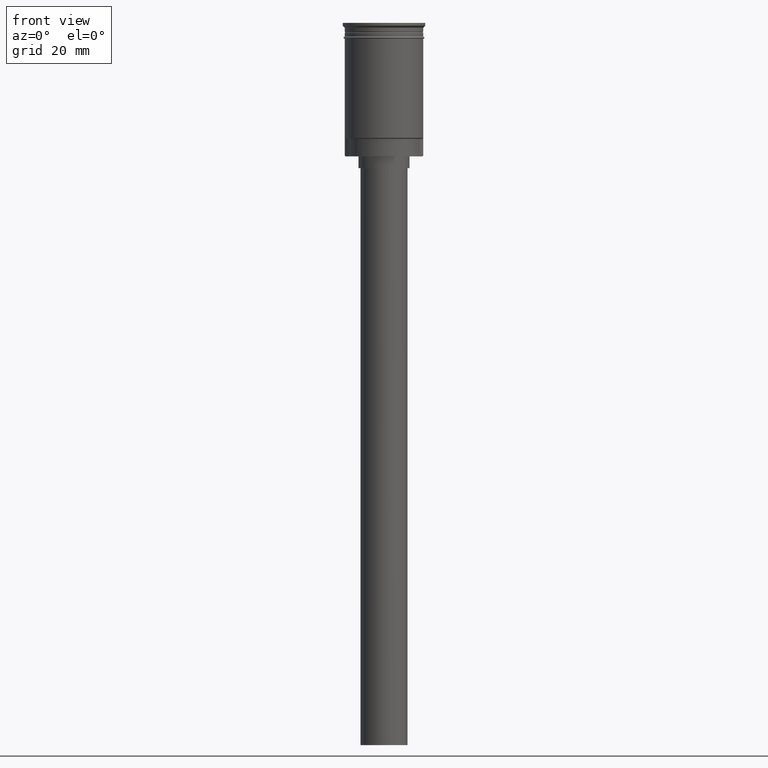
[diagram: clean part render]
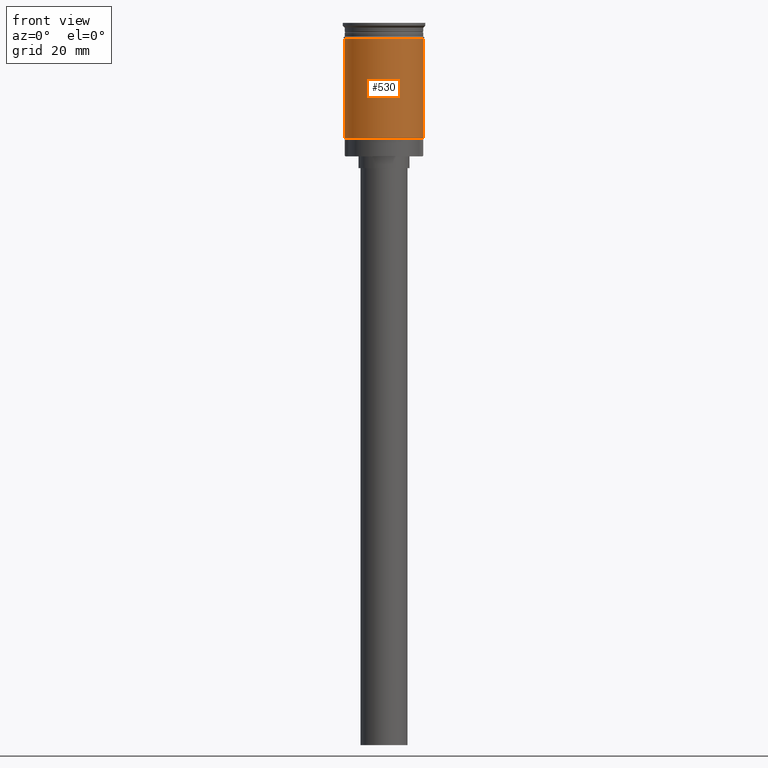
[diagram: same view with one face highlighted and labeled with its STEP entity id]
A machine part, front view. The second image highlights one B-rep face of the part: STEP entity #530.
In plain terms, the highlighted cylindrical surface (partial cylindrical patch) has radius 10 mm, axis along (-0, -0, 1).
Its self-contained STEP definition (entity closure, byte-faithful):
#7 = DIRECTION ( 'NONE',  ( -0.000000000000000000, -0.000000000000000000, 1.000000000000000000 ) ) ;
#12 = VECTOR ( 'NONE', #403, 1000.000000000000000 ) ;
#37 = EDGE_CURVE ( 'NONE', #219, #409, #1247, .T. ) ;
#149 = CARTESIAN_POINT ( 'NONE',  ( -9.999999999999991118, 0.000000000000000000, -29.29999999999997229 ) ) ;
#180 = DIRECTION ( 'NONE',  ( 1.000000000000000000, 0.000000000000000000, 0.000000000000000000 ) ) ;
#190 = VERTEX_POINT ( 'NONE', #149 ) ;
#213 = DIRECTION ( 'NONE',  ( -0.000000000000000000, -0.000000000000000000, 1.000000000000000000 ) ) ;
#219 = VERTEX_POINT ( 'NONE', #741 ) ;
#274 = DIRECTION ( 'NONE',  ( -0.000000000000000000, -0.000000000000000000, 1.000000000000000000 ) ) ;
#333 = AXIS2_PLACEMENT_3D ( 'NONE', #1256, #7, #1362 ) ;
#403 = DIRECTION ( 'NONE',  ( -0.000000000000000000, -0.000000000000000000, 1.000000000000000000 ) ) ;
#409 = VERTEX_POINT ( 'NONE', #1202 ) ;
#440 = AXIS2_PLACEMENT_3D ( 'NONE', #1569, #213, #1351 ) ;
#443 = CIRCLE ( 'NONE', #333, 9.999999999999994671 ) ;
#465 = ORIENTED_EDGE ( 'NONE', *, *, #656, .F. ) ;
#530 = ADVANCED_FACE ( 'NONE', ( #710 ), #1093, .T. ) ;
#576 = CARTESIAN_POINT ( 'NONE',  ( -10.00000000000000000, 1.224646799147353256E-15, -3.999999999999996447 ) ) ;
#580 = LINE ( 'NONE', #1583, #1139 ) ;
#656 = EDGE_CURVE ( 'NONE', #978, #409, #1539, .T. ) ;
#710 = FACE_OUTER_BOUND ( 'NONE', #1084, .T. ) ;
#741 = CARTESIAN_POINT ( 'NONE',  ( 9.999999999999994671, 1.224646799147352665E-15, -29.29999999999997229 ) ) ;
#801 = AXIS2_PLACEMENT_3D ( 'NONE', #1537, #274, #180 ) ;
#824 = ORIENTED_EDGE ( 'NONE', *, *, #1584, .F. ) ;
#833 = DIRECTION ( 'NONE',  ( -0.000000000000000000, -0.000000000000000000, 1.000000000000000000 ) ) ;
#923 = ORIENTED_EDGE ( 'NONE', *, *, #37, .T. ) ;
#969 = ORIENTED_EDGE ( 'NONE', *, *, #1225, .T. ) ;
#978 = VERTEX_POINT ( 'NONE', #576 ) ;
#1084 = EDGE_LOOP ( 'NONE', ( #824, #969, #923, #465 ) ) ;
#1093 = CYLINDRICAL_SURFACE ( 'NONE', #440, 9.999999999999994671 ) ;
#1139 = VECTOR ( 'NONE', #833, 1000.000000000000000 ) ;
#1202 = CARTESIAN_POINT ( 'NONE',  ( 9.999999999999998224, 0.000000000000000000, -3.999999999999996447 ) ) ;
#1225 = EDGE_CURVE ( 'NONE', #190, #219, #443, .T. ) ;
#1247 = LINE ( 'NONE', #1512, #12 ) ;
#1256 = CARTESIAN_POINT ( 'NONE',  ( 0.000000000000000000, 0.000000000000000000, -29.29999999999997229 ) ) ;
#1351 = DIRECTION ( 'NONE',  ( 1.000000000000000000, 0.000000000000000000, 0.000000000000000000 ) ) ;
#1362 = DIRECTION ( 'NONE',  ( -1.000000000000000000, 0.000000000000000000, 0.000000000000000000 ) ) ;
#1512 = CARTESIAN_POINT ( 'NONE',  ( 9.999999999999994671, 0.000000000000000000, 0.000000000000000000 ) ) ;
#1537 = CARTESIAN_POINT ( 'NONE',  ( 0.000000000000000000, 0.000000000000000000, -3.999999999999996447 ) ) ;
#1539 = CIRCLE ( 'NONE', #801, 9.999999999999998224 ) ;
#1569 = CARTESIAN_POINT ( 'NONE',  ( 0.000000000000000000, 0.000000000000000000, 0.000000000000000000 ) ) ;
#1583 = CARTESIAN_POINT ( 'NONE',  ( -9.999999999999994671, 1.224646799147352665E-15, 0.000000000000000000 ) ) ;
#1584 = EDGE_CURVE ( 'NONE', #190, #978, #580, .T. ) ;